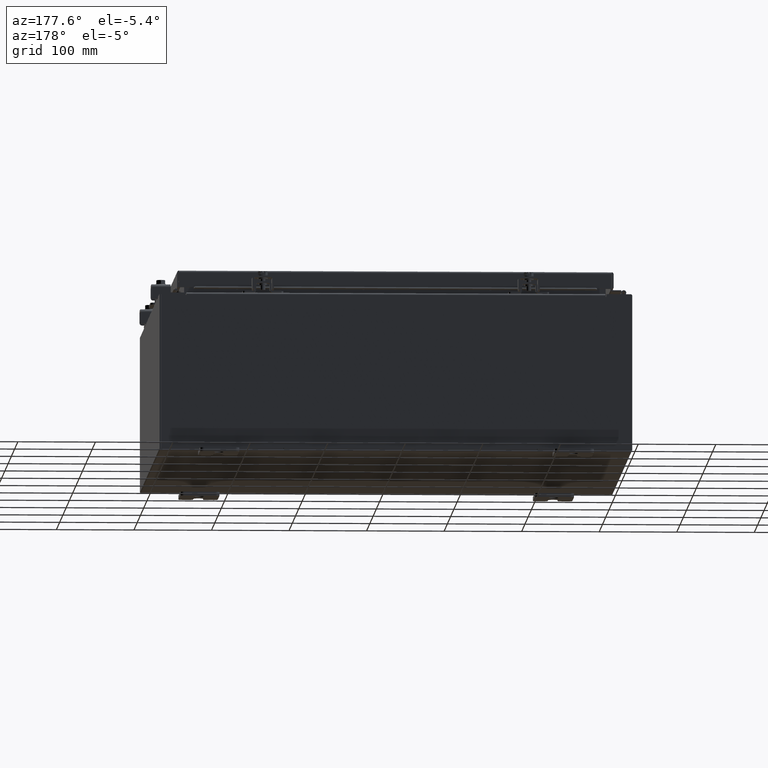
[diagram: clean part render]
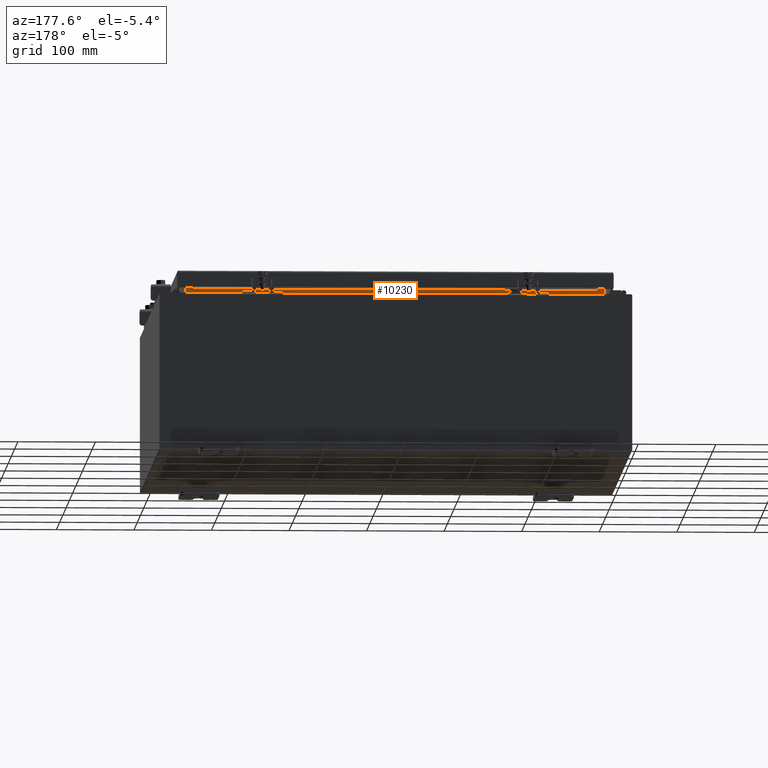
[diagram: same view with one face highlighted and labeled with its STEP entity id]
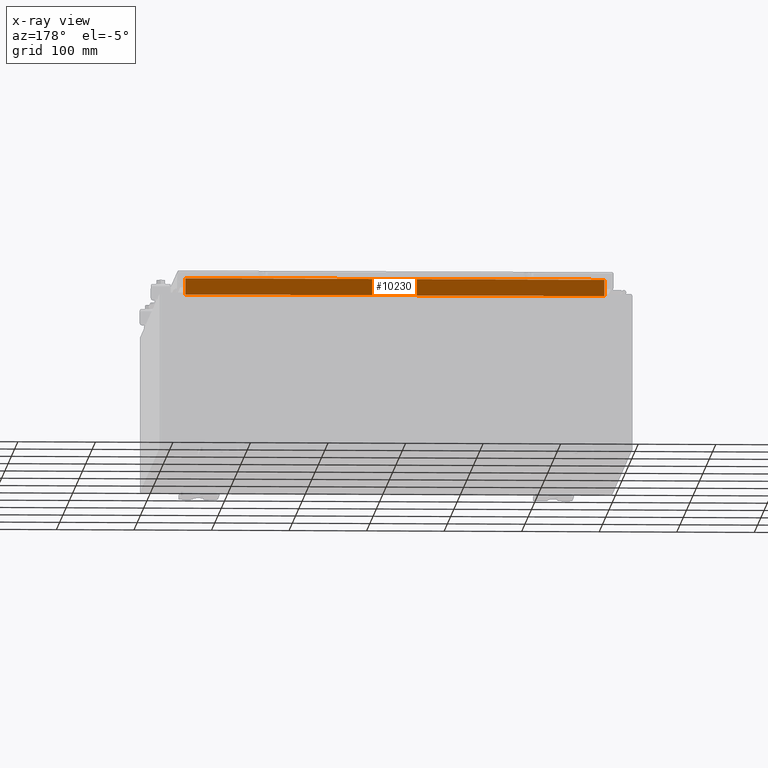
[diagram: x-ray of the same camera — body ghosted, the highlighted face saturated]
A machine part, auxiliary view. The second image highlights one B-rep face of the part: STEP entity #10230.
The next image is the same camera in x-ray: the body ghosted, the highlighted face saturated — about 0% of this face is hidden behind the body in this view.
In plain terms, the highlighted planar face has unit normal (0, 1, 0).
Its self-contained STEP definition (entity closure, byte-faithful):
#3903 = ORIENTED_EDGE ( 'NONE', *, *, #12621, .F. ) ;
#4469 = CARTESIAN_POINT ( 'NONE',  ( 10.63720000000000200, -1.300299999999999300, 4.837600000000003700 ) ) ;
#7266 = ORIENTED_EDGE ( 'NONE', *, *, #18666, .F. ) ;
#7610 = VERTEX_POINT ( 'NONE', #23382 ) ;
#7709 = PLANE ( 'NONE',  #13043 ) ;
#8287 = EDGE_LOOP ( 'NONE', ( #20779, #7266, #3903, #22290 ) ) ;
#8319 = VECTOR ( 'NONE', #29259, 39.37007874015748100 ) ;
#9033 = FACE_OUTER_BOUND ( 'NONE', #8287, .T. ) ;
#9217 = CARTESIAN_POINT ( 'NONE',  ( -10.63720000000000200, -1.300299999999999800, 4.000000000000004400 ) ) ;
#9248 = EDGE_CURVE ( 'NONE', #7610, #24804, #15729, .T. ) ;
#10230 = ADVANCED_FACE ( 'NONE', ( #9033 ), #7709, .T. ) ;
#10936 = CARTESIAN_POINT ( 'NONE',  ( -10.63720000000000200, -1.300299999999999800, 4.013000000000003500 ) ) ;
#12621 = EDGE_CURVE ( 'NONE', #19348, #30763, #27408, .T. ) ;
#12738 = DIRECTION ( 'NONE',  ( 0.0000000000000000000, -0.0000000000000000000, 1.000000000000000000 ) ) ;
#13043 = AXIS2_PLACEMENT_3D ( 'NONE', #25287, #27793, #12738 ) ;
#13781 = CARTESIAN_POINT ( 'NONE',  ( 10.63720000000000200, -1.300299999999999800, 4.837600000000003700 ) ) ;
#14055 = VECTOR ( 'NONE', #15201, 39.37007874015748100 ) ;
#15201 = DIRECTION ( 'NONE',  ( -0.0000000000000000000, -0.0000000000000000000, 1.000000000000000000 ) ) ;
#15729 = LINE ( 'NONE', #9217, #8319 ) ;
#18666 = EDGE_CURVE ( 'NONE', #30763, #7610, #19307, .T. ) ;
#18843 = VECTOR ( 'NONE', #21021, 39.37007874015748100 ) ;
#19307 = LINE ( 'NONE', #4469, #25253 ) ;
#19348 = VERTEX_POINT ( 'NONE', #32477 ) ;
#20433 = LINE ( 'NONE', #10936, #18843 ) ;
#20779 = ORIENTED_EDGE ( 'NONE', *, *, #9248, .F. ) ;
#21021 = DIRECTION ( 'NONE',  ( 1.000000000000000000, 0.0000000000000000000, -2.568202152506545800E-017 ) ) ;
#22290 = ORIENTED_EDGE ( 'NONE', *, *, #25039, .F. ) ;
#23382 = CARTESIAN_POINT ( 'NONE',  ( -10.63720000000000200, -1.300299999999999300, 4.837600000000003700 ) ) ;
#24505 = DIRECTION ( 'NONE',  ( -1.000000000000000000, -0.0000000000000000000, -0.0000000000000000000 ) ) ;
#24804 = VERTEX_POINT ( 'NONE', #29005 ) ;
#25039 = EDGE_CURVE ( 'NONE', #24804, #19348, #20433, .T. ) ;
#25253 = VECTOR ( 'NONE', #24505, 39.37007874015748100 ) ;
#25287 = CARTESIAN_POINT ( 'NONE',  ( 0.0000000000000000000, -1.300299999999999800, 0.0000000000000000000 ) ) ;
#27408 = LINE ( 'NONE', #30260, #14055 ) ;
#27793 = DIRECTION ( 'NONE',  ( 0.0000000000000000000, 1.000000000000000000, 0.0000000000000000000 ) ) ;
#29005 = CARTESIAN_POINT ( 'NONE',  ( -10.63720000000000400, -1.300299999999999800, 4.013000000000003500 ) ) ;
#29259 = DIRECTION ( 'NONE',  ( -0.0000000000000000000, -0.0000000000000000000, -1.000000000000000000 ) ) ;
#30260 = CARTESIAN_POINT ( 'NONE',  ( 10.63720000000000200, -1.300299999999999800, 4.925300000000004500 ) ) ;
#30763 = VERTEX_POINT ( 'NONE', #13781 ) ;
#32477 = CARTESIAN_POINT ( 'NONE',  ( 10.63720000000000400, -1.300299999999999800, 4.013000000000003500 ) ) ;